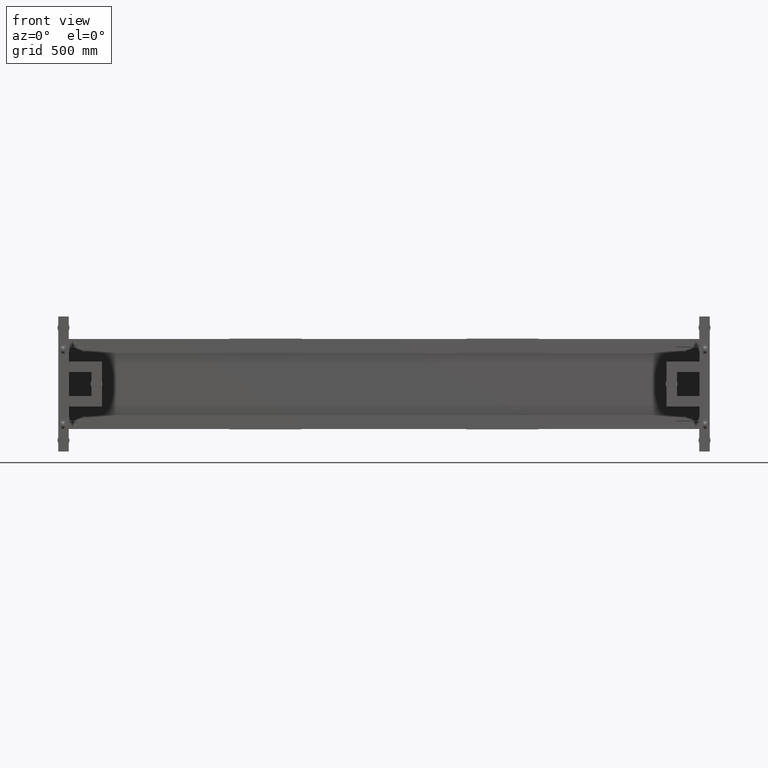
[diagram: clean part render]
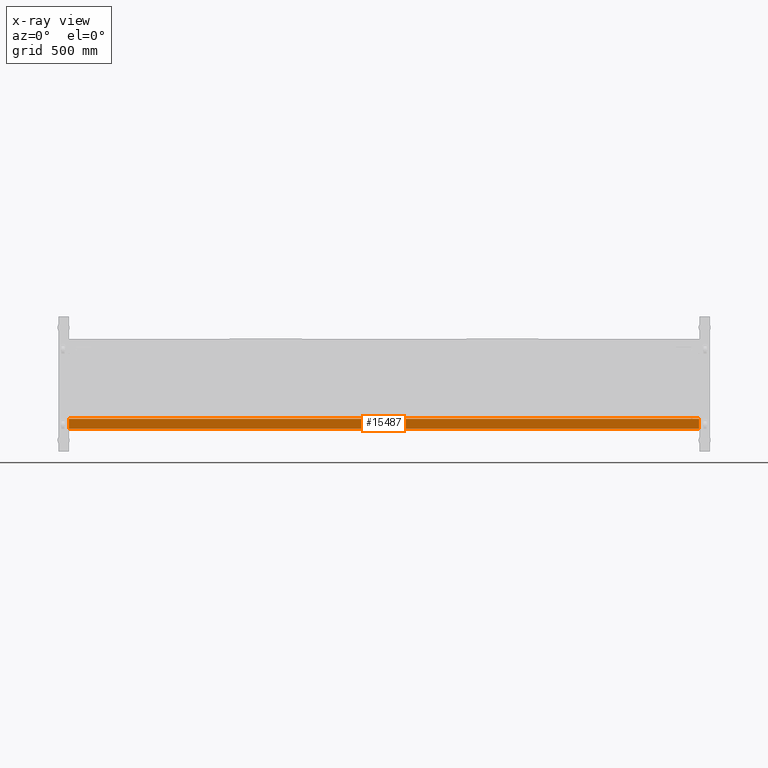
[diagram: x-ray — body ghosted, one internal face saturated and labeled with its STEP entity id]
A machine part, front view, then the same camera in x-ray: the body is ghosted and one INTERNAL B-rep face — a face not visible from any outside direction — is saturated and labeled: STEP entity #15487.
In plain terms, the highlighted planar face has unit normal (-0, -1, -0).
Its self-contained STEP definition (entity closure, byte-faithful):
#4202 = CARTESIAN_POINT ( 'NONE',  ( -1266.172487437185964, 554.4410804020122896, -232.4999999999999147 ) ) ;
#4726 = CARTESIAN_POINT ( 'NONE',  ( -266.1724874371845431, 554.4410804020133128, -297.4999999999999432 ) ) ;
#5839 = ORIENTED_EDGE ( 'NONE', *, *, #24088, .T. ) ;
#6202 = VECTOR ( 'NONE', #29156, 1000.000000000000000 ) ;
#7449 = VERTEX_POINT ( 'NONE', #32265 ) ;
#10371 = LINE ( 'NONE', #4202, #6202 ) ;
#12740 = DIRECTION ( 'NONE',  ( 3.276802108920293614E-31, 2.999999999999999839E-15, -1.000000000000000000 ) ) ;
#15487 = ADVANCED_FACE ( 'NONE', ( #25008 ), #43822, .T. ) ;
#19503 = CARTESIAN_POINT ( 'NONE',  ( -1266.172487437185964, 554.4410804020122896, -232.4999999999999147 ) ) ;
#24088 = EDGE_CURVE ( 'NONE', #31924, #41748, #10371, .T. ) ;
#24151 = CARTESIAN_POINT ( 'NONE',  ( 2929.827512562816082, 554.4410804020130854, -232.4999999999999147 ) ) ;
#25008 = FACE_OUTER_BOUND ( 'NONE', #60666, .T. ) ;
#25273 = EDGE_CURVE ( 'NONE', #41748, #7449, #60371, .T. ) ;
#25740 = VERTEX_POINT ( 'NONE', #24151 ) ;
#26000 = ORIENTED_EDGE ( 'NONE', *, *, #31133, .F. ) ;
#29156 = DIRECTION ( 'NONE',  ( 0.000000000000000000, 2.999999999999999839E-15, -1.000000000000000000 ) ) ;
#29168 = CARTESIAN_POINT ( 'NONE',  ( 2929.827512562816082, 554.4410804020130854, -232.4999999999999147 ) ) ;
#31133 = EDGE_CURVE ( 'NONE', #31924, #25740, #32893, .T. ) ;
#31289 = EDGE_CURVE ( 'NONE', #25740, #7449, #58656, .T. ) ;
#31924 = VERTEX_POINT ( 'NONE', #19503 ) ;
#32265 = CARTESIAN_POINT ( 'NONE',  ( 2929.827512562816082, 554.4410804020133128, -297.4999999999999432 ) ) ;
#32520 = VECTOR ( 'NONE', #77472, 1000.000000000000000 ) ;
#32893 = LINE ( 'NONE', #51302, #55931 ) ;
#41748 = VERTEX_POINT ( 'NONE', #78154 ) ;
#41956 = DIRECTION ( 'NONE',  ( 1.000000000000000000, -1.092267369640097868E-16, 0.000000000000000000 ) ) ;
#43822 = PLANE ( 'NONE',  #49207 ) ;
#49207 = AXIS2_PLACEMENT_3D ( 'NONE', #68789, #69591, #12740 ) ;
#51302 = CARTESIAN_POINT ( 'NONE',  ( -266.1724874371845431, 554.4410804020130854, -232.4999999999999147 ) ) ;
#55931 = VECTOR ( 'NONE', #57830, 1000.000000000000000 ) ;
#57830 = DIRECTION ( 'NONE',  ( 1.000000000000000000, -1.092267369640097868E-16, 0.000000000000000000 ) ) ;
#58656 = LINE ( 'NONE', #29168, #32520 ) ;
#60371 = LINE ( 'NONE', #4726, #77694 ) ;
#60666 = EDGE_LOOP ( 'NONE', ( #26000, #5839, #65210, #68440 ) ) ;
#65210 = ORIENTED_EDGE ( 'NONE', *, *, #25273, .T. ) ;
#68440 = ORIENTED_EDGE ( 'NONE', *, *, #31289, .F. ) ;
#68789 = CARTESIAN_POINT ( 'NONE',  ( -266.1724874371845431, 554.4410804020130854, -232.4999999999999147 ) ) ;
#69591 = DIRECTION ( 'NONE',  ( -1.092267369640097868E-16, -1.000000000000000000, -2.999999999999999839E-15 ) ) ;
#77472 = DIRECTION ( 'NONE',  ( -1.035296940874237648E-30, 2.999999999999999839E-15, -1.000000000000000000 ) ) ;
#77694 = VECTOR ( 'NONE', #41956, 1000.000000000000000 ) ;
#78154 = CARTESIAN_POINT ( 'NONE',  ( -1266.172487437185964, 554.4410804020125170, -297.4999999999999432 ) ) ;